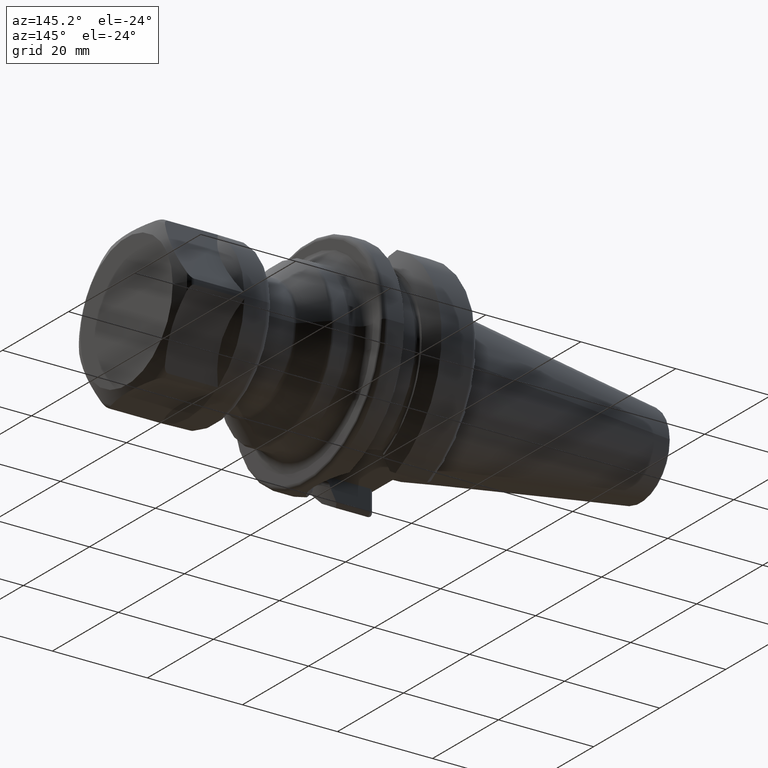
[diagram: clean part render]
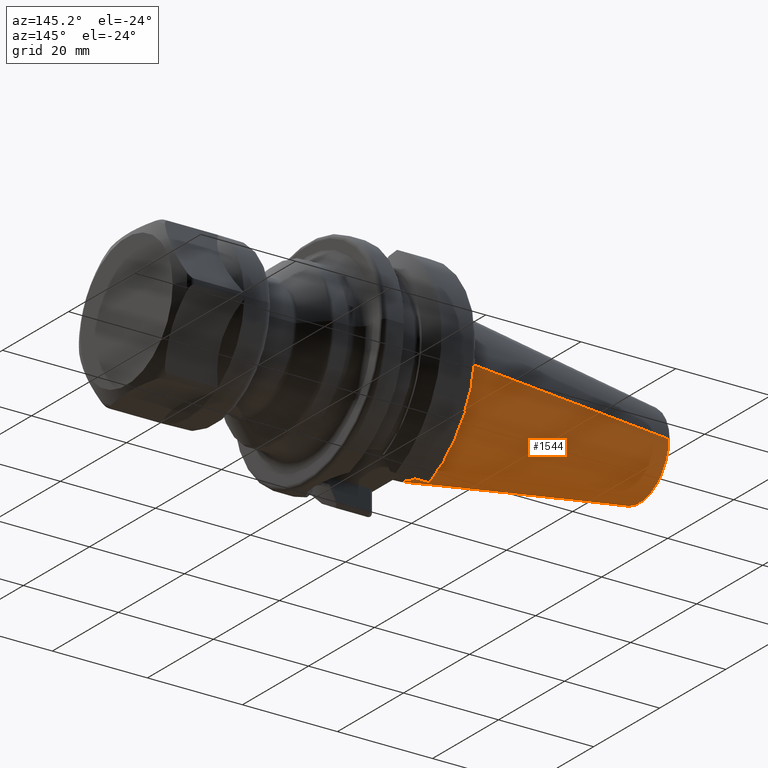
[diagram: same view with one face highlighted and labeled with its STEP entity id]
A machine part, auxiliary view. The second image highlights one B-rep face of the part: STEP entity #1544.
In plain terms, the highlighted conical surface has half-angle 8.298 deg.
Its self-contained STEP definition (entity closure, byte-faithful):
#32=CARTESIAN_POINT('',(-4.797215933459E1,0.E0,0.E0));
#33=DIRECTION('',(-1.E0,0.E0,0.E0));
#34=DIRECTION('',(0.E0,1.E0,0.E0));
#35=AXIS2_PLACEMENT_3D('',#32,#33,#34);
#47=DIRECTION('',(-9.895312636440E-1,-1.443186691705E-1,0.E0));
#48=VECTOR('',#47,4.683321324594E1);
#49=CARTESIAN_POINT('',(-1.629230650827E0,1.563738406209E1,0.E0));
#50=LINE('',#49,#48);
#51=DIRECTION('',(-9.895312636440E-1,1.443186691705E-1,0.E0));
#52=VECTOR('',#51,4.683321324594E1);
#53=CARTESIAN_POINT('',(-1.629230650827E0,-1.563738406209E1,0.E0));
#54=LINE('',#53,#52);
#55=CARTESIAN_POINT('',(-1.629230650827E0,0.E0,0.E0));
#56=DIRECTION('',(-1.E0,0.E0,0.E0));
#57=DIRECTION('',(0.E0,1.E0,0.E0));
#58=AXIS2_PLACEMENT_3D('',#55,#56,#57);
#1212=CARTESIAN_POINT('',(-4.797215933459E1,8.878477053461E0,0.E0));
#1214=VERTEX_POINT('',#1212);
#1216=CARTESIAN_POINT('',(-4.797215933459E1,-8.878477053461E0,0.E0));
#1218=VERTEX_POINT('',#1216);
#1427=CARTESIAN_POINT('',(-1.629230650827E0,1.563738406209E1,0.E0));
#1428=VERTEX_POINT('',#1427);
#1429=CARTESIAN_POINT('',(-1.629230650827E0,-1.563738406209E1,0.E0));
#1430=VERTEX_POINT('',#1429);
#1532=CARTESIAN_POINT('',(-2.480069499271E1,0.E0,0.E0));
#1533=DIRECTION('',(1.E0,0.E0,0.E0));
#1534=DIRECTION('',(0.E0,-1.E0,0.E0));
#1535=AXIS2_PLACEMENT_3D('',#1532,#1533,#1534);
#1536=CONICAL_SURFACE('',#1535,1.225793055778E1,8.297826828206E0);
#1537=ORIENTED_EDGE('',*,*,#1522,.T.);
#1538=ORIENTED_EDGE('',*,*,#1499,.T.);
#1539=ORIENTED_EDGE('',*,*,#1526,.F.);
#1541=ORIENTED_EDGE('',*,*,#1540,.F.);
#1542=EDGE_LOOP('',(#1537,#1538,#1539,#1541));
#1543=FACE_OUTER_BOUND('',#1542,.F.);
#1544=ADVANCED_FACE('',(#1543),#1536,.T.);
#36=CIRCLE('',#35,8.878477053461E0);
#59=CIRCLE('',#58,1.563738406209E1);
#1499=EDGE_CURVE('',#1214,#1218,#36,.T.);
#1522=EDGE_CURVE('',#1428,#1214,#50,.T.);
#1526=EDGE_CURVE('',#1430,#1218,#54,.T.);
#1540=EDGE_CURVE('',#1428,#1430,#59,.T.);